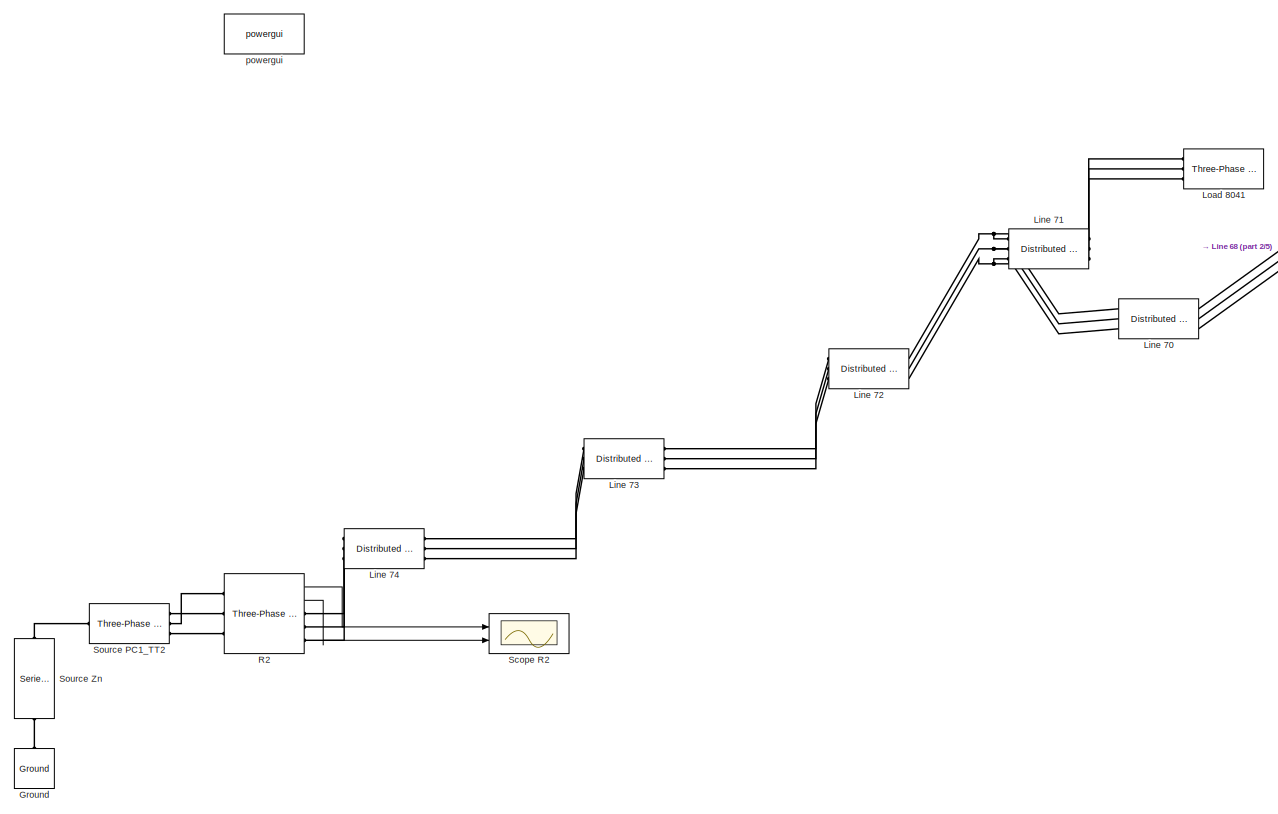
[diagram: root canvas - part 1/5, top left region]
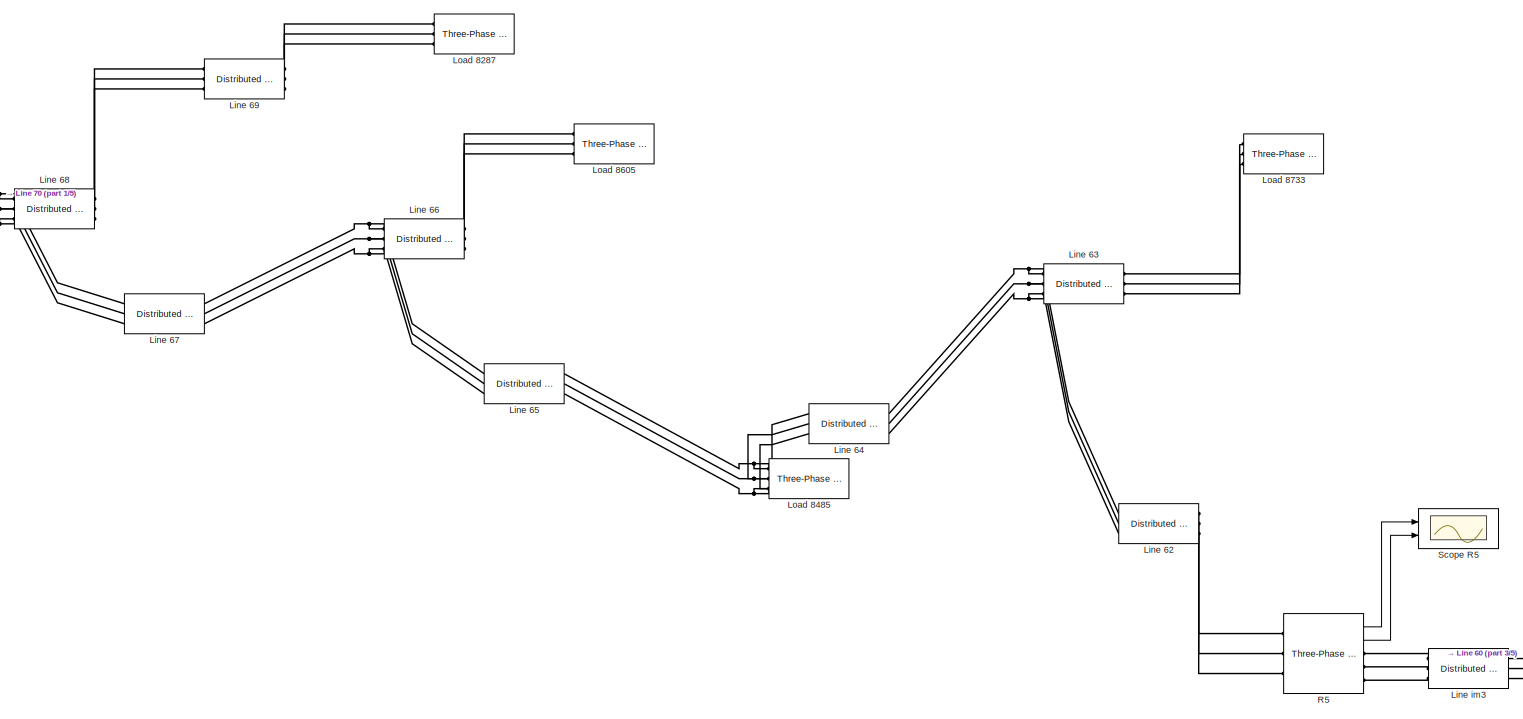
[diagram: root canvas - part 2/5, top center region]
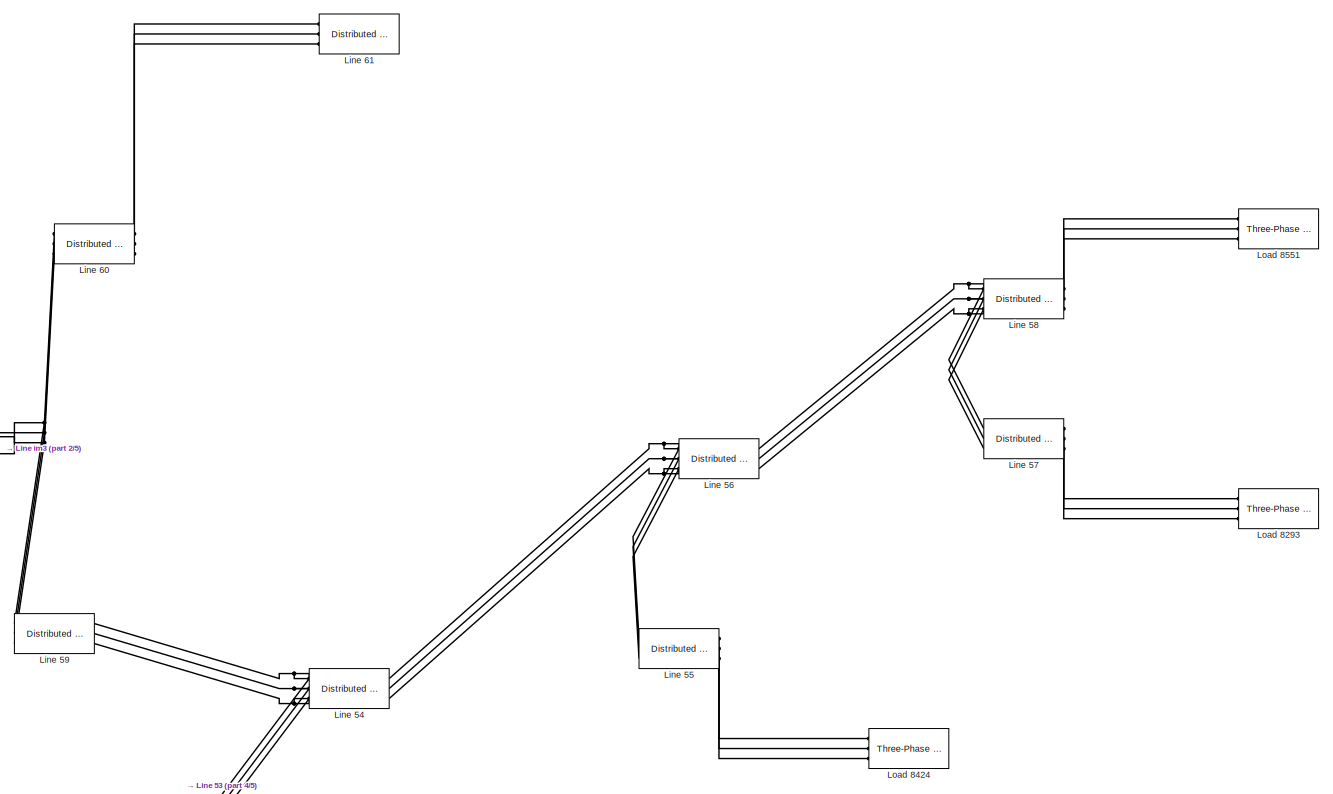
[diagram: root canvas - part 3/5, top right region]
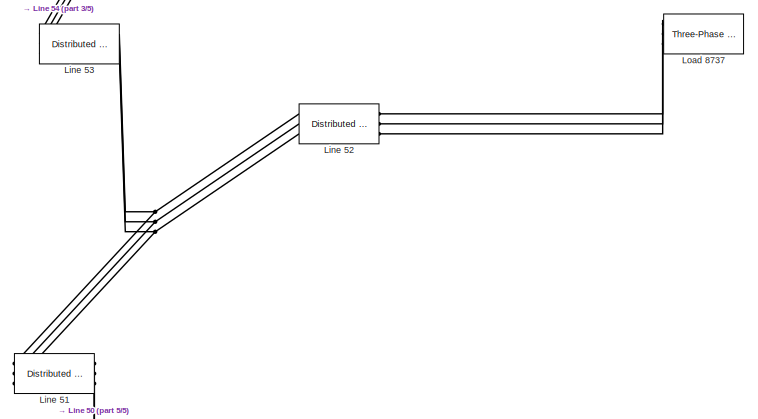
[diagram: root canvas - part 4/5, middle right region]
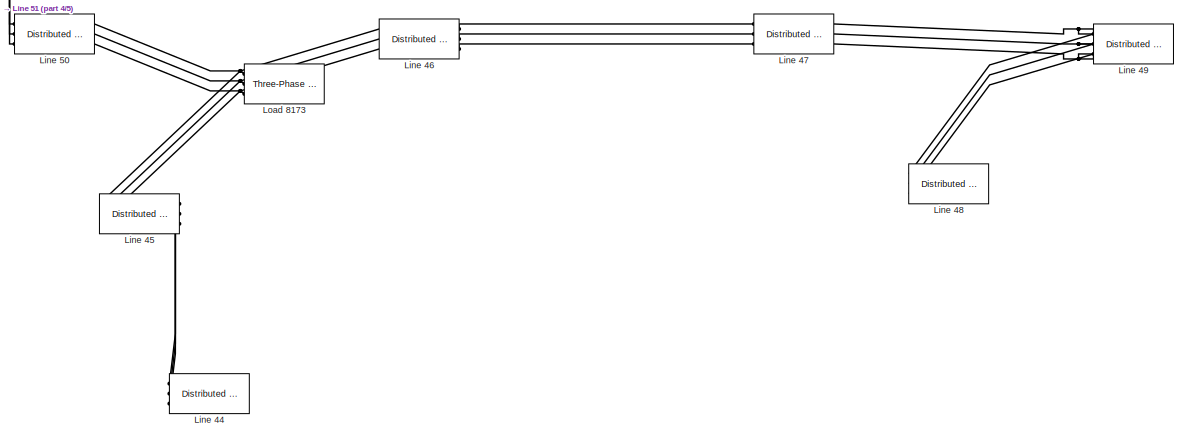
[diagram: root canvas - part 5/5, bottom right region]
MODEL slx_b8335328a02b
KIND model
CONFIG AbsTol = auto
CONFIG EnableMultiTasking = off
CONFIG FixedStep = 0.2
CONFIG MaxStep = auto
CONFIG MinStep = auto
CONFIG RelTol = 1e-3
CONFIG SampleTimeConstraint = Unconstrained
CONFIG SolverName = FixedStepAuto
CONFIG StartTime = 0
CONFIG StopTime = 0.2
BLOCK [Reference] Ground  REF=spsGroundLib/Ground
  NameLocation = right
  Ports = [0, 0, 0, 0, 0, 1]
  SourceBlock = spsGroundLib/Ground
  SourceProductBaseCode = PS
  SourceType = Ground
BLOCK [Reference] Line 44  REF=spsDistributedParametersLineLib/Distributed Parameters Line
  Ports = [0, 0, 0, 0, 0, 3, 3]
  SourceBlock = spsDistributedParametersLineLib/Distributed Parameters Line
  SourceProductBaseCode = PS
  SourceType = Distributed Parameters Line
BLOCK [Reference] Line 45  REF=spsDistributedParametersLineLib/Distributed Parameters Line
  Ports = [0, 0, 0, 0, 0, 3, 3]
  SourceBlock = spsDistributedParametersLineLib/Distributed Parameters Line
  SourceProductBaseCode = PS
  SourceType = Distributed Parameters Line
BLOCK [Reference] Line 46  REF=spsDistributedParametersLineLib/Distributed Parameters Line
  Ports = [0, 0, 0, 0, 0, 3, 3]
  SourceBlock = spsDistributedParametersLineLib/Distributed Parameters Line
  SourceProductBaseCode = PS
  SourceType = Distributed Parameters Line
BLOCK [Reference] Line 47  REF=spsDistributedParametersLineLib/Distributed Parameters Line
  Ports = [0, 0, 0, 0, 0, 3, 3]
  SourceBlock = spsDistributedParametersLineLib/Distributed Parameters Line
  SourceProductBaseCode = PS
  SourceType = Distributed Parameters Line
BLOCK [Reference] Line 48  REF=spsDistributedParametersLineLib/Distributed Parameters Line
  Ports = [0, 0, 0, 0, 0, 3, 3]
  SourceBlock = spsDistributedParametersLineLib/Distributed Parameters Line
  SourceProductBaseCode = PS
  SourceType = Distributed Parameters Line
BLOCK [Reference] Line 49  REF=spsDistributedParametersLineLib/Distributed Parameters Line
  Ports = [0, 0, 0, 0, 0, 3, 3]
  SourceBlock = spsDistributedParametersLineLib/Distributed Parameters Line
  SourceProductBaseCode = PS
  SourceType = Distributed Parameters Line
BLOCK [Reference] Line 50  REF=spsDistributedParametersLineLib/Distributed Parameters Line
  Ports = [0, 0, 0, 0, 0, 3, 3]
  SourceBlock = spsDistributedParametersLineLib/Distributed Parameters Line
  SourceProductBaseCode = PS
  SourceType = Distributed Parameters Line
BLOCK [Reference] Line 51  REF=spsDistributedParametersLineLib/Distributed Parameters Line
  Ports = [0, 0, 0, 0, 0, 3, 3]
  SourceBlock = spsDistributedParametersLineLib/Distributed Parameters Line
  SourceProductBaseCode = PS
  SourceType = Distributed Parameters Line
BLOCK [Reference] Line 52  REF=spsDistributedParametersLineLib/Distributed Parameters Line
  Ports = [0, 0, 0, 0, 0, 3, 3]
  SourceBlock = spsDistributedParametersLineLib/Distributed Parameters Line
  SourceProductBaseCode = PS
  SourceType = Distributed Parameters Line
BLOCK [Reference] Line 53  REF=spsDistributedParametersLineLib/Distributed Parameters Line
  Ports = [0, 0, 0, 0, 0, 3, 3]
  SourceBlock = spsDistributedParametersLineLib/Distributed Parameters Line
  SourceProductBaseCode = PS
  SourceType = Distributed Parameters Line
BLOCK [Reference] Line 54  REF=spsDistributedParametersLineLib/Distributed Parameters Line
  Ports = [0, 0, 0, 0, 0, 3, 3]
  SourceBlock = spsDistributedParametersLineLib/Distributed Parameters Line
  SourceProductBaseCode = PS
  SourceType = Distributed Parameters Line
BLOCK [Reference] Line 55  REF=spsDistributedParametersLineLib/Distributed Parameters Line
  Ports = [0, 0, 0, 0, 0, 3, 3]
  SourceBlock = spsDistributedParametersLineLib/Distributed Parameters Line
  SourceProductBaseCode = PS
  SourceType = Distributed Parameters Line
BLOCK [Reference] Line 56  REF=spsDistributedParametersLineLib/Distributed Parameters Line
  Ports = [0, 0, 0, 0, 0, 3, 3]
  SourceBlock = spsDistributedParametersLineLib/Distributed Parameters Line
  SourceProductBaseCode = PS
  SourceType = Distributed Parameters Line
BLOCK [Reference] Line 57  REF=spsDistributedParametersLineLib/Distributed Parameters Line
  Ports = [0, 0, 0, 0, 0, 3, 3]
  SourceBlock = spsDistributedParametersLineLib/Distributed Parameters Line
  SourceProductBaseCode = PS
  SourceType = Distributed Parameters Line
BLOCK [Reference] Line 58  REF=spsDistributedParametersLineLib/Distributed Parameters Line
  Ports = [0, 0, 0, 0, 0, 3, 3]
  SourceBlock = spsDistributedParametersLineLib/Distributed Parameters Line
  SourceProductBaseCode = PS
  SourceType = Distributed Parameters Line
BLOCK [Reference] Line 59  REF=spsDistributedParametersLineLib/Distributed Parameters Line
  Ports = [0, 0, 0, 0, 0, 3, 3]
  SourceBlock = spsDistributedParametersLineLib/Distributed Parameters Line
  SourceProductBaseCode = PS
  SourceType = Distributed Parameters Line
BLOCK [Reference] Line 60  REF=spsDistributedParametersLineLib/Distributed Parameters Line
  Ports = [0, 0, 0, 0, 0, 3, 3]
  SourceBlock = spsDistributedParametersLineLib/Distributed Parameters Line
  SourceProductBaseCode = PS
  SourceType = Distributed Parameters Line
BLOCK [Reference] Line 61  REF=spsDistributedParametersLineLib/Distributed Parameters Line
  Ports = [0, 0, 0, 0, 0, 3, 3]
  SourceBlock = spsDistributedParametersLineLib/Distributed Parameters Line
  SourceProductBaseCode = PS
  SourceType = Distributed Parameters Line
BLOCK [Reference] Line 62  REF=spsDistributedParametersLineLib/Distributed Parameters Line
  Ports = [0, 0, 0, 0, 0, 3, 3]
  SourceBlock = spsDistributedParametersLineLib/Distributed Parameters Line
  SourceProductBaseCode = PS
  SourceType = Distributed Parameters Line
BLOCK [Reference] Line 63  REF=spsDistributedParametersLineLib/Distributed Parameters Line
  Ports = [0, 0, 0, 0, 0, 3, 3]
  SourceBlock = spsDistributedParametersLineLib/Distributed Parameters Line
  SourceProductBaseCode = PS
  SourceType = Distributed Parameters Line
BLOCK [Reference] Line 64  REF=spsDistributedParametersLineLib/Distributed Parameters Line
  Ports = [0, 0, 0, 0, 0, 3, 3]
  SourceBlock = spsDistributedParametersLineLib/Distributed Parameters Line
  SourceProductBaseCode = PS
  SourceType = Distributed Parameters Line
BLOCK [Reference] Line 65  REF=spsDistributedParametersLineLib/Distributed Parameters Line
  Ports = [0, 0, 0, 0, 0, 3, 3]
  SourceBlock = spsDistributedParametersLineLib/Distributed Parameters Line
  SourceProductBaseCode = PS
  SourceType = Distributed Parameters Line
BLOCK [Reference] Line 66  REF=spsDistributedParametersLineLib/Distributed Parameters Line
  Ports = [0, 0, 0, 0, 0, 3, 3]
  SourceBlock = spsDistributedParametersLineLib/Distributed Parameters Line
  SourceProductBaseCode = PS
  SourceType = Distributed Parameters Line
BLOCK [Reference] Line 67  REF=spsDistributedParametersLineLib/Distributed Parameters Line
  Ports = [0, 0, 0, 0, 0, 3, 3]
  SourceBlock = spsDistributedParametersLineLib/Distributed Parameters Line
  SourceProductBaseCode = PS
  SourceType = Distributed Parameters Line
BLOCK [Reference] Line 68  REF=spsDistributedParametersLineLib/Distributed Parameters Line
  Ports = [0, 0, 0, 0, 0, 3, 3]
  SourceBlock = spsDistributedParametersLineLib/Distributed Parameters Line
  SourceProductBaseCode = PS
  SourceType = Distributed Parameters Line
BLOCK [Reference] Line 69  REF=spsDistributedParametersLineLib/Distributed Parameters Line
  Ports = [0, 0, 0, 0, 0, 3, 3]
  SourceBlock = spsDistributedParametersLineLib/Distributed Parameters Line
  SourceProductBaseCode = PS
  SourceType = Distributed Parameters Line
BLOCK [Reference] Line 70  REF=spsDistributedParametersLineLib/Distributed Parameters Line
  Ports = [0, 0, 0, 0, 0, 3, 3]
  SourceBlock = spsDistributedParametersLineLib/Distributed Parameters Line
  SourceProductBaseCode = PS
  SourceType = Distributed Parameters Line
BLOCK [Reference] Line 71  REF=spsDistributedParametersLineLib/Distributed Parameters Line
  Ports = [0, 0, 0, 0, 0, 3, 3]
  SourceBlock = spsDistributedParametersLineLib/Distributed Parameters Line
  SourceProductBaseCode = PS
  SourceType = Distributed Parameters Line
BLOCK [Reference] Line 72  REF=spsDistributedParametersLineLib/Distributed Parameters Line
  Ports = [0, 0, 0, 0, 0, 3, 3]
  SourceBlock = spsDistributedParametersLineLib/Distributed Parameters Line
  SourceProductBaseCode = PS
  SourceType = Distributed Parameters Line
BLOCK [Reference] Line 73  REF=spsDistributedParametersLineLib/Distributed Parameters Line
  Ports = [0, 0, 0, 0, 0, 3, 3]
  SourceBlock = spsDistributedParametersLineLib/Distributed Parameters Line
  SourceProductBaseCode = PS
  SourceType = Distributed Parameters Line
BLOCK [Reference] Line 74  REF=spsDistributedParametersLineLib/Distributed Parameters Line
  Ports = [0, 0, 0, 0, 0, 3, 3]
  SourceBlock = spsDistributedParametersLineLib/Distributed Parameters Line
  SourceProductBaseCode = PS
  SourceType = Distributed Parameters Line
BLOCK [Reference] Line im3  REF=spsDistributedParametersLineLib/Distributed Parameters Line
  Ports = [0, 0, 0, 0, 0, 3, 3]
  SourceBlock = spsDistributedParametersLineLib/Distributed Parameters Line
  SourceProductBaseCode = PS
  SourceType = Distributed Parameters Line
BLOCK [Reference] Load 8041  REF=spsThreePhaseSeriesRLCLoadLib/Three-Phase
Series RLC Load
  AttributesFormatString = \n
  NameLocation = top
  Ports = [0, 0, 0, 0, 0, 3]
  SourceBlock = spsThreePhaseSeriesRLCLoadLib/Three-Phase\nSeries RLC Load
  SourceProductBaseCode = PS
  SourceType = Three-Phase Series RLC Load
BLOCK [Reference] Load 8173  REF=spsThreePhaseSeriesRLCLoadLib/Three-Phase
Series RLC Load
  AttributesFormatString = \n
  NameLocation = top
  Ports = [0, 0, 0, 0, 0, 3]
  SourceBlock = spsThreePhaseSeriesRLCLoadLib/Three-Phase\nSeries RLC Load
  SourceProductBaseCode = PS
  SourceType = Three-Phase Series RLC Load
BLOCK [Reference] Load 8287  REF=spsThreePhaseSeriesRLCLoadLib/Three-Phase
Series RLC Load
  AttributesFormatString = \n
  NameLocation = top
  Ports = [0, 0, 0, 0, 0, 3]
  SourceBlock = spsThreePhaseSeriesRLCLoadLib/Three-Phase\nSeries RLC Load
  SourceProductBaseCode = PS
  SourceType = Three-Phase Series RLC Load
BLOCK [Reference] Load 8293  REF=spsThreePhaseSeriesRLCLoadLib/Three-Phase
Series RLC Load
  AttributesFormatString = \n
  NameLocation = top
  Ports = [0, 0, 0, 0, 0, 3]
  SourceBlock = spsThreePhaseSeriesRLCLoadLib/Three-Phase\nSeries RLC Load
  SourceProductBaseCode = PS
  SourceType = Three-Phase Series RLC Load
BLOCK [Reference] Load 8424  REF=spsThreePhaseSeriesRLCLoadLib/Three-Phase
Series RLC Load
  AttributesFormatString = \n
  NameLocation = top
  Ports = [0, 0, 0, 0, 0, 3]
  SourceBlock = spsThreePhaseSeriesRLCLoadLib/Three-Phase\nSeries RLC Load
  SourceProductBaseCode = PS
  SourceType = Three-Phase Series RLC Load
BLOCK [Reference] Load 8485  REF=spsThreePhaseSeriesRLCLoadLib/Three-Phase
Series RLC Load
  AttributesFormatString = \n
  NameLocation = top
  Ports = [0, 0, 0, 0, 0, 3]
  SourceBlock = spsThreePhaseSeriesRLCLoadLib/Three-Phase\nSeries RLC Load
  SourceProductBaseCode = PS
  SourceType = Three-Phase Series RLC Load
BLOCK [Reference] Load 8551  REF=spsThreePhaseSeriesRLCLoadLib/Three-Phase
Series RLC Load
  AttributesFormatString = \n
  NameLocation = top
  Ports = [0, 0, 0, 0, 0, 3]
  SourceBlock = spsThreePhaseSeriesRLCLoadLib/Three-Phase\nSeries RLC Load
  SourceProductBaseCode = PS
  SourceType = Three-Phase Series RLC Load
BLOCK [Reference] Load 8605  REF=spsThreePhaseSeriesRLCLoadLib/Three-Phase
Series RLC Load
  AttributesFormatString = \n
  NameLocation = top
  Ports = [0, 0, 0, 0, 0, 3]
  SourceBlock = spsThreePhaseSeriesRLCLoadLib/Three-Phase\nSeries RLC Load
  SourceProductBaseCode = PS
  SourceType = Three-Phase Series RLC Load
BLOCK [Reference] Load 8733  REF=spsThreePhaseSeriesRLCLoadLib/Three-Phase
Series RLC Load
  AttributesFormatString = \n
  NameLocation = top
  Ports = [0, 0, 0, 0, 0, 3]
  SourceBlock = spsThreePhaseSeriesRLCLoadLib/Three-Phase\nSeries RLC Load
  SourceProductBaseCode = PS
  SourceType = Three-Phase Series RLC Load
BLOCK [Reference] Load 8737  REF=spsThreePhaseSeriesRLCLoadLib/Three-Phase
Series RLC Load
  AttributesFormatString = \n
  NameLocation = top
  Ports = [0, 0, 0, 0, 0, 3]
  SourceBlock = spsThreePhaseSeriesRLCLoadLib/Three-Phase\nSeries RLC Load
  SourceProductBaseCode = PS
  SourceType = Three-Phase Series RLC Load
BLOCK [Reference] R2  REF=spsThreePhaseVIMeasurementLib/Three-Phase
V-I Measurement
  Ports = [0, 2, 0, 0, 0, 3, 3]
  SourceBlock = spsThreePhaseVIMeasurementLib/Three-Phase\nV-I Measurement
  SourceProductBaseCode = PS
  SourceType = Three-Phase VI Measurement
BLOCK [Reference] R5  REF=spsThreePhaseVIMeasurementLib/Three-Phase
V-I Measurement
  Ports = [0, 2, 0, 0, 0, 3, 3]
  SourceBlock = spsThreePhaseVIMeasurementLib/Three-Phase\nV-I Measurement
  SourceProductBaseCode = PS
  SourceType = Three-Phase VI Measurement
BLOCK [Scope] Scope R2
  Floating = off
  NumInputPorts = 2
  Ports = [2]
  ScopeSpecificationString = Simulink.scopes.TimeScopeBlockCfg('CurrentConfiguration', extmgr.ConfigurationSet(extmgr.Configuration('Core','General UI',true),extmgr.Configuration('Core','Source UI',true),extmgr.Configuration('Sources','WiredSimulink',true,'DataLogging',true,'DataLoggingSaveFormat','StructureWithTime','DataLoggingVariableName','ScopeData3'),extmgr.Configuration('Visuals','Time Domain',true,'SerializedDisplays'...<+1686ch>
BLOCK [Scope] Scope R5
  Floating = off
  NumInputPorts = 2
  Ports = [2]
  ScopeSpecificationString = Simulink.scopes.TimeScopeBlockCfg('CurrentConfiguration', extmgr.ConfigurationSet(extmgr.Configuration('Core','General UI',true),extmgr.Configuration('Core','Source UI',true),extmgr.Configuration('Sources','WiredSimulink',true,'DataLogging',true,'DataLoggingSaveFormat','StructureWithTime','DataLoggingVariableName','ScopeData37'),extmgr.Configuration('Visuals','Time Domain',true,'SerializedDisplays...<+1381ch>
BLOCK [Reference] Source PC1_TT2  REF=spsThreePhaseSourceLib/Three-Phase Source
  Ports = [0, 0, 0, 0, 0, 1, 3]
  SourceBlock = spsThreePhaseSourceLib/Three-Phase Source
  SourceProductBaseCode = PS
  SourceType = Three-Phase Source
BLOCK [Reference] Source Zn  REF=spsSeriesRLCBranchLib/Series RLC Branch
  NameLocation = right
  Ports = [0, 0, 0, 0, 0, 1, 1]
  SourceBlock = spsSeriesRLCBranchLib/Series RLC Branch
  SourceProductBaseCode = PS
  SourceType = Series RLC Branch
BLOCK [Reference] powergui  REF=spspowerguiLib/powergui
  Ports = []
  Priority = 1
  SourceBlock = spspowerguiLib/powergui
  SourceProductBaseCode = PS
  SourceType = PSB option menu block
LINE R2:1 -> Scope R2:1
LINE R2:2 -> Scope R2:2
LINE R5:1 -> Scope R5:1
LINE R5:2 -> Scope R5:2
PLINE Ground:LConn1 -- Source Zn:LConn1
PLINE Line 44:LConn1 -- Line 45:RConn1
PLINE Line 44:LConn2 -- Line 45:RConn2
PLINE Line 44:LConn3 -- Line 45:RConn3
PNET net1: Line 45:LConn1 -- Line 46:LConn1 -- Line 50:RConn1 -- Load 8173:LConn1
PNET net2: Line 45:LConn2 -- Line 46:LConn2 -- Line 50:RConn2 -- Load 8173:LConn2
PNET net3: Line 45:LConn3 -- Line 46:LConn3 -- Line 50:RConn3 -- Load 8173:LConn3
PLINE Line 46:RConn1 -- Line 47:LConn1
PLINE Line 46:RConn2 -- Line 47:LConn2
PLINE Line 46:RConn3 -- Line 47:LConn3
PNET net4: Line 47:RConn1 -- Line 48:LConn1 -- Line 49:LConn1
PNET net5: Line 47:RConn2 -- Line 48:LConn2 -- Line 49:LConn2
PNET net6: Line 47:RConn3 -- Line 48:LConn3 -- Line 49:LConn3
PLINE Line 50:LConn1 -- Line 51:RConn1
PLINE Line 50:LConn2 -- Line 51:RConn2
PLINE Line 50:LConn3 -- Line 51:RConn3
PNET net7: Line 51:LConn1 -- Line 52:LConn1 -- Line 53:RConn1
PNET net8: Line 51:LConn2 -- Line 52:LConn2 -- Line 53:RConn2
PNET net9: Line 51:LConn3 -- Line 52:LConn3 -- Line 53:RConn3
PLINE Line 52:RConn1 -- Load 8737:LConn1
PLINE Line 52:RConn2 -- Load 8737:LConn2
PLINE Line 52:RConn3 -- Load 8737:LConn3
PNET net10: Line 53:LConn1 -- Line 54:LConn1 -- Line 59:RConn1
PNET net11: Line 53:LConn2 -- Line 54:LConn2 -- Line 59:RConn2
PNET net12: Line 53:LConn3 -- Line 54:LConn3 -- Line 59:RConn3
PNET net13: Line 54:RConn1 -- Line 55:LConn1 -- Line 56:LConn1
PNET net14: Line 54:RConn2 -- Line 55:LConn2 -- Line 56:LConn2
PNET net15: Line 54:RConn3 -- Line 55:LConn3 -- Line 56:LConn3
PLINE Line 55:RConn1 -- Load 8424:LConn1
PLINE Line 55:RConn2 -- Load 8424:LConn2
PLINE Line 55:RConn3 -- Load 8424:LConn3
PNET net16: Line 56:RConn1 -- Line 57:LConn1 -- Line 58:LConn1
PNET net17: Line 56:RConn2 -- Line 57:LConn2 -- Line 58:LConn2
PNET net18: Line 56:RConn3 -- Line 57:LConn3 -- Line 58:LConn3
PLINE Line 57:RConn1 -- Load 8293:LConn1
PLINE Line 57:RConn2 -- Load 8293:LConn2
PLINE Line 57:RConn3 -- Load 8293:LConn3
PLINE Line 58:RConn1 -- Load 8551:LConn1
PLINE Line 58:RConn2 -- Load 8551:LConn2
PLINE Line 58:RConn3 -- Load 8551:LConn3
PNET net19: Line 59:LConn1 -- Line 60:LConn1 -- Line im3:RConn1
PNET net20: Line 59:LConn2 -- Line 60:LConn2 -- Line im3:RConn2
PNET net21: Line 59:LConn3 -- Line 60:LConn3 -- Line im3:RConn3
PLINE Line 60:RConn1 -- Line 61:LConn1
PLINE Line 60:RConn2 -- Line 61:LConn2
PLINE Line 60:RConn3 -- Line 61:LConn3
PNET net22: Line 62:LConn1 -- Line 63:LConn1 -- Line 64:RConn1
PNET net23: Line 62:LConn2 -- Line 63:LConn2 -- Line 64:RConn2
PNET net24: Line 62:LConn3 -- Line 63:LConn3 -- Line 64:RConn3
PLINE Line 62:RConn1 -- R5:LConn1
PLINE Line 62:RConn2 -- R5:LConn2
PLINE Line 62:RConn3 -- R5:LConn3
PLINE Line 63:RConn1 -- Load 8733:LConn1
PLINE Line 63:RConn2 -- Load 8733:LConn2
PLINE Line 63:RConn3 -- Load 8733:LConn3
PNET net25: Line 64:LConn1 -- Line 65:RConn1 -- Load 8485:LConn1
PNET net26: Line 64:LConn2 -- Line 65:RConn2 -- Load 8485:LConn2
PNET net27: Line 64:LConn3 -- Line 65:RConn3 -- Load 8485:LConn3
PNET net28: Line 65:LConn1 -- Line 66:LConn1 -- Line 67:RConn1
PNET net29: Line 65:LConn2 -- Line 66:LConn2 -- Line 67:RConn2
PNET net30: Line 65:LConn3 -- Line 66:LConn3 -- Line 67:RConn3
PLINE Line 66:RConn1 -- Load 8605:LConn1
PLINE Line 66:RConn2 -- Load 8605:LConn2
PLINE Line 66:RConn3 -- Load 8605:LConn3
PNET net31: Line 67:LConn1 -- Line 68:LConn1 -- Line 70:RConn1
PNET net32: Line 67:LConn2 -- Line 68:LConn2 -- Line 70:RConn2
PNET net33: Line 67:LConn3 -- Line 68:LConn3 -- Line 70:RConn3
PLINE Line 68:RConn1 -- Line 69:LConn1
PLINE Line 68:RConn2 -- Line 69:LConn2
PLINE Line 68:RConn3 -- Line 69:LConn3
PLINE Line 69:RConn1 -- Load 8287:LConn1
PLINE Line 69:RConn2 -- Load 8287:LConn2
PLINE Line 69:RConn3 -- Load 8287:LConn3
PNET net34: Line 70:LConn1 -- Line 71:LConn1 -- Line 72:RConn1
PNET net35: Line 70:LConn2 -- Line 71:LConn2 -- Line 72:RConn2
PNET net36: Line 70:LConn3 -- Line 71:LConn3 -- Line 72:RConn3
PLINE Line 71:RConn1 -- Load 8041:LConn1
PLINE Line 71:RConn2 -- Load 8041:LConn2
PLINE Line 71:RConn3 -- Load 8041:LConn3
PLINE Line 72:LConn1 -- Line 73:RConn1
PLINE Line 72:LConn2 -- Line 73:RConn2
PLINE Line 72:LConn3 -- Line 73:RConn3
PLINE Line 73:LConn1 -- Line 74:RConn1
PLINE Line 73:LConn2 -- Line 74:RConn2
PLINE Line 73:LConn3 -- Line 74:RConn3
PLINE Line 74:LConn1 -- R2:RConn1
PLINE Line 74:LConn2 -- R2:RConn2
PLINE Line 74:LConn3 -- R2:RConn3
PLINE Line im3:LConn1 -- R5:RConn1
PLINE Line im3:LConn2 -- R5:RConn2
PLINE Line im3:LConn3 -- R5:RConn3
PLINE R2:LConn1 -- Source PC1_TT2:RConn1
PLINE R2:LConn2 -- Source PC1_TT2:RConn2
PLINE R2:LConn3 -- Source PC1_TT2:RConn3
PLINE Source PC1_TT2:LConn1 -- Source Zn:RConn1
note: PNET lines group multi-terminal physical nets as a canonical sorted terminal list (undirected conserving connections); 2-terminal nets keep the pairwise PLINE form
